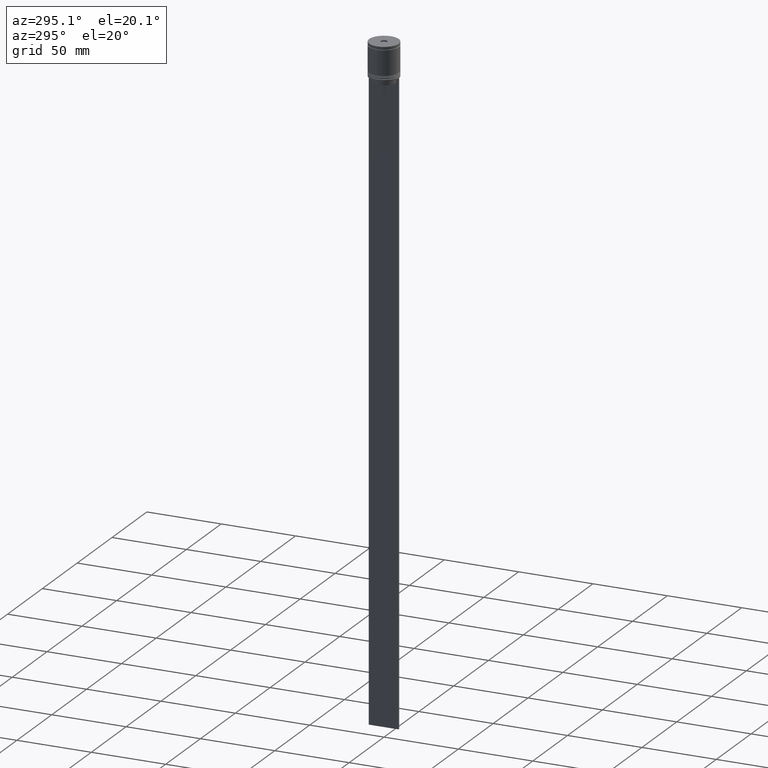
[diagram: clean part render]
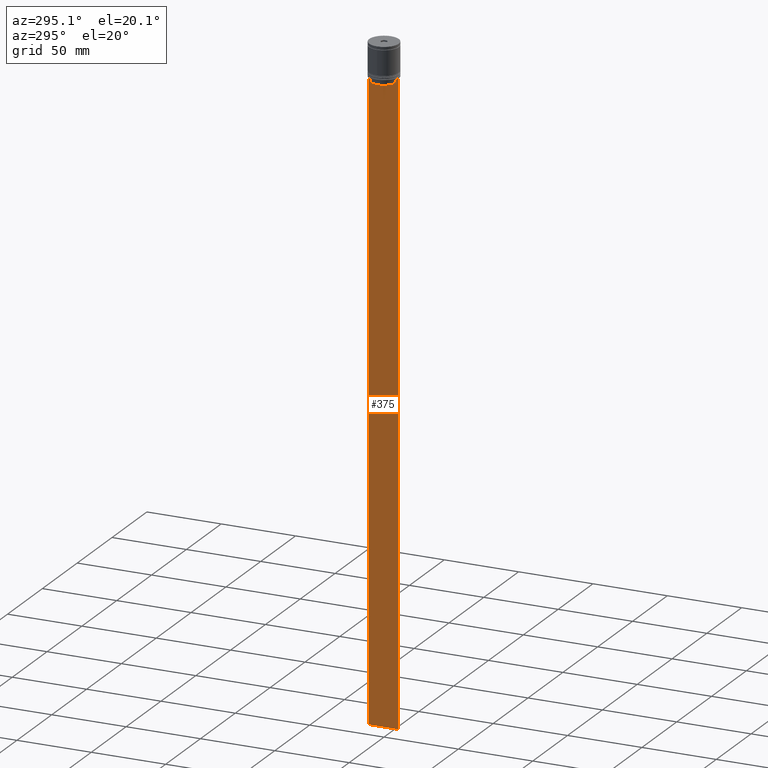
[diagram: same view with one face highlighted and labeled with its STEP entity id]
A machine part, auxiliary view. The second image highlights one B-rep face of the part: STEP entity #375.
In plain terms, the highlighted planar face has unit normal (-1, 0, 0).
Its self-contained STEP definition (entity closure, byte-faithful):
#8 = CARTESIAN_POINT ( 'NONE',  ( -0.5000000000000000000, -10.00000000000000178, -2.475015605499213844 ) ) ;
#22 = CARTESIAN_POINT ( 'NONE',  ( -0.5000000000000000000, -8.385105843100610912, -23.00000000000000000 ) ) ;
#42 = CARTESIAN_POINT ( 'NONE',  ( -0.5000000000000000000, 8.885943956609226646, -22.50000000000000000 ) ) ;
#50 = LINE ( 'NONE', #679, #506 ) ;
#89 = CARTESIAN_POINT ( 'NONE',  ( -0.5000000000000000000, -8.885943956609226646, -22.50000000000000000 ) ) ;
#110 = DIRECTION ( 'NONE',  ( 0.000000000000000000, -1.000000000000000000, 0.000000000000000000 ) ) ;
#147 = CARTESIAN_POINT ( 'NONE',  ( -0.5000000000000000000, -10.00000000000000178, -444.5000000000000000 ) ) ;
#175 = DIRECTION ( 'NONE',  ( 0.000000000000000000, 1.000000000000000000, 0.000000000000000000 ) ) ;
#243 = DIRECTION ( 'NONE',  ( 0.000000000000000000, 0.000000000000000000, -1.000000000000000000 ) ) ;
#281 = CARTESIAN_POINT ( 'NONE',  ( -0.5000000000000000000, 8.385105843100610912, -23.00000000000000000 ) ) ;
#341 = CARTESIAN_POINT ( 'NONE',  ( -0.5000000000000000000, -8.385105843100610912, 0.000000000000000000 ) ) ;
#348 = ORIENTED_EDGE ( 'NONE', *, *, #1237, .F. ) ;
#350 = CARTESIAN_POINT ( 'NONE',  ( -0.5000000000000000000, -10.00000000000000178, -22.50000000000000000 ) ) ;
#375 = ADVANCED_FACE ( 'NONE', ( #1553 ), #562, .T. ) ;
#388 = CARTESIAN_POINT ( 'NONE',  ( -0.5000000000000000000, -10.00000000000000178, -22.50000000000000000 ) ) ;
#396 = VECTOR ( 'NONE', #110, 1000.000000000000000 ) ;
#401 = CARTESIAN_POINT ( 'NONE',  ( -0.5000000000000000000, 9.999999999999998224, -2.475015605499213844 ) ) ;
#425 = DIRECTION ( 'NONE',  ( -1.000000000000000000, 0.000000000000000000, 0.000000000000000000 ) ) ;
#448 = CARTESIAN_POINT ( 'NONE',  ( -0.5000000000000000000, 8.885943956609226646, -22.50000000000000000 ) ) ;
#457 = CARTESIAN_POINT ( 'NONE',  ( -0.5000000000000000000, -8.385105843100610912, -25.50000000000000000 ) ) ;
#486 = CARTESIAN_POINT ( 'NONE',  ( -0.5000000000000000000, -8.385105843100610912, -23.00000000000000000 ) ) ;
#506 = VECTOR ( 'NONE', #685, 1000.000000000000000 ) ;
#551 = CARTESIAN_POINT ( 'NONE',  ( -0.5000000000000000000, 8.719005771582342135, -22.66667453442325098 ) ) ;
#562 = PLANE ( 'NONE',  #1647 ) ;
#580 = ORIENTED_EDGE ( 'NONE', *, *, #1717, .F. ) ;
#589 = VERTEX_POINT ( 'NONE', #1806 ) ;
#622 = VERTEX_POINT ( 'NONE', #1357 ) ;
#632 = CARTESIAN_POINT ( 'NONE',  ( -0.5000000000000000000, -9.887365675446622149, -22.50000000000000000 ) ) ;
#636 = VECTOR ( 'NONE', #175, 1000.000000000000000 ) ;
#670 = EDGE_CURVE ( 'NONE', #1448, #1517, #823, .T. ) ;
#679 = CARTESIAN_POINT ( 'NONE',  ( -0.5000000000000000000, -10.00000000000000178, -22.50000000000000000 ) ) ;
#685 = DIRECTION ( 'NONE',  ( 0.000000000000000000, -1.000000000000000000, 0.000000000000000000 ) ) ;
#688 = ORIENTED_EDGE ( 'NONE', *, *, #1743, .F. ) ;
#703 = ORIENTED_EDGE ( 'NONE', *, *, #1830, .F. ) ;
#728 = LINE ( 'NONE', #740, #396 ) ;
#733 = VERTEX_POINT ( 'NONE', #1319 ) ;
#740 = CARTESIAN_POINT ( 'NONE',  ( -0.5000000000000000000, -10.00000000000000178, -22.50000000000000000 ) ) ;
#767 = CARTESIAN_POINT ( 'NONE',  ( -0.5000000000000000000, 8.400000000000000355, -25.50000000000000000 ) ) ;
#788 = ORIENTED_EDGE ( 'NONE', *, *, #1959, .T. ) ;
#789 = CARTESIAN_POINT ( 'NONE',  ( -0.5000000000000000000, -8.719005764482783860, -22.66667454151159689 ) ) ;
#794 = ORIENTED_EDGE ( 'NONE', *, *, #1085, .F. ) ;
#804 = LINE ( 'NONE', #147, #636 ) ;
#823 = LINE ( 'NONE', #341, #1306 ) ;
#840 = LINE ( 'NONE', #388, #1684 ) ;
#882 = VERTEX_POINT ( 'NONE', #281 ) ;
#883 = CARTESIAN_POINT ( 'NONE',  ( -0.5000000000000000000, -10.00000000000000178, -22.50000000000000000 ) ) ;
#885 = LINE ( 'NONE', #1821, #1777 ) ;
#920 = VERTEX_POINT ( 'NONE', #1899 ) ;
#925 = EDGE_CURVE ( 'NONE', #1517, #589, #1100, .T. ) ;
#949 = ORIENTED_EDGE ( 'NONE', *, *, #1863, .F. ) ;
#996 = CARTESIAN_POINT ( 'NONE',  ( -0.5000000000000000000, -8.552060194457768105, -22.83334167772666845 ) ) ;
#1038 = B_SPLINE_CURVE_WITH_KNOTS ( 'NONE', 3,
 ( #42, #551, #1184, #1150 ),
 .UNSPECIFIED., .F., .F.,
 ( 4, 4 ),
 ( 0.01511546479386905242, 0.01582316445439076874 ),
 .UNSPECIFIED. ) ;
#1051 = DIRECTION ( 'NONE',  ( 0.000000000000000000, 0.000000000000000000, 1.000000000000000000 ) ) ;
#1084 = LINE ( 'NONE', #767, #1094 ) ;
#1085 = EDGE_CURVE ( 'NONE', #733, #1919, #728, .T. ) ;
#1094 = VECTOR ( 'NONE', #1695, 1000.000000000000000 ) ;
#1100 = B_SPLINE_CURVE_WITH_KNOTS ( 'NONE', 3,
 ( #22, #996, #789, #89 ),
 .UNSPECIFIED., .F., .F.,
 ( 4, 4 ),
 ( 0.03898465126933125385, 0.03969388910599652709 ),
 .UNSPECIFIED. ) ;
#1144 = ORIENTED_EDGE ( 'NONE', *, *, #670, .F. ) ;
#1150 = CARTESIAN_POINT ( 'NONE',  ( -0.5000000000000000000, 8.385105843100610912, -23.00000000000000000 ) ) ;
#1178 = VERTEX_POINT ( 'NONE', #883 ) ;
#1184 = CARTESIAN_POINT ( 'NONE',  ( -0.5000000000000000000, 8.552060201981374732, -22.83334167021640582 ) ) ;
#1229 = ORIENTED_EDGE ( 'NONE', *, *, #925, .F. ) ;
#1237 = EDGE_CURVE ( 'NONE', #882, #1718, #885, .T. ) ;
#1270 = ORIENTED_EDGE ( 'NONE', *, *, #1733, .F. ) ;
#1306 = VECTOR ( 'NONE', #1936, 1000.000000000000000 ) ;
#1319 = CARTESIAN_POINT ( 'NONE',  ( -0.5000000000000000000, 9.887365675446622149, -22.50000000000000000 ) ) ;
#1347 = EDGE_CURVE ( 'NONE', #1718, #1448, #1084, .T. ) ;
#1357 = CARTESIAN_POINT ( 'NONE',  ( -0.5000000000000000000, 9.999999999999998224, -444.5000000000000000 ) ) ;
#1364 = LINE ( 'NONE', #350, #1596 ) ;
#1424 = LINE ( 'NONE', #401, #1488 ) ;
#1448 = VERTEX_POINT ( 'NONE', #457 ) ;
#1455 = VECTOR ( 'NONE', #1928, 1000.000000000000000 ) ;
#1456 = LINE ( 'NONE', #8, #1455 ) ;
#1488 = VECTOR ( 'NONE', #243, 1000.000000000000000 ) ;
#1500 = DIRECTION ( 'NONE',  ( 0.000000000000000000, -1.000000000000000000, 0.000000000000000000 ) ) ;
#1517 = VERTEX_POINT ( 'NONE', #486 ) ;
#1553 = FACE_OUTER_BOUND ( 'NONE', #1954, .T. ) ;
#1596 = VECTOR ( 'NONE', #1794, 1000.000000000000000 ) ;
#1626 = CARTESIAN_POINT ( 'NONE',  ( -0.5000000000000000000, 9.999999999999994671, -22.50000000000000000 ) ) ;
#1647 = AXIS2_PLACEMENT_3D ( 'NONE', #2023, #425, #1051 ) ;
#1668 = VERTEX_POINT ( 'NONE', #632 ) ;
#1684 = VECTOR ( 'NONE', #1500, 1000.000000000000000 ) ;
#1695 = DIRECTION ( 'NONE',  ( 0.000000000000000000, -1.000000000000000000, 0.000000000000000000 ) ) ;
#1717 = EDGE_CURVE ( 'NONE', #1178, #920, #1456, .T. ) ;
#1718 = VERTEX_POINT ( 'NONE', #2000 ) ;
#1733 = EDGE_CURVE ( 'NONE', #1668, #1178, #1364, .T. ) ;
#1743 = EDGE_CURVE ( 'NONE', #2050, #733, #50, .T. ) ;
#1772 = ORIENTED_EDGE ( 'NONE', *, *, #2060, .F. ) ;
#1777 = VECTOR ( 'NONE', #1834, 1000.000000000000000 ) ;
#1794 = DIRECTION ( 'NONE',  ( 0.000000000000000000, -1.000000000000000000, 0.000000000000000000 ) ) ;
#1806 = CARTESIAN_POINT ( 'NONE',  ( -0.5000000000000000000, -8.885943956609226646, -22.50000000000000000 ) ) ;
#1821 = CARTESIAN_POINT ( 'NONE',  ( -0.5000000000000000000, 8.385105843100610912, 0.000000000000000000 ) ) ;
#1830 = EDGE_CURVE ( 'NONE', #1919, #882, #1038, .T. ) ;
#1834 = DIRECTION ( 'NONE',  ( 0.000000000000000000, 0.000000000000000000, -1.000000000000000000 ) ) ;
#1863 = EDGE_CURVE ( 'NONE', #589, #1668, #840, .T. ) ;
#1899 = CARTESIAN_POINT ( 'NONE',  ( -0.5000000000000000000, -10.00000000000000178, -444.5000000000000000 ) ) ;
#1919 = VERTEX_POINT ( 'NONE', #448 ) ;
#1922 = ORIENTED_EDGE ( 'NONE', *, *, #1347, .F. ) ;
#1928 = DIRECTION ( 'NONE',  ( 0.000000000000000000, 0.000000000000000000, -1.000000000000000000 ) ) ;
#1936 = DIRECTION ( 'NONE',  ( -0.000000000000000000, -0.000000000000000000, 1.000000000000000000 ) ) ;
#1954 = EDGE_LOOP ( 'NONE', ( #703, #794, #688, #788, #1772, #580, #1270, #949, #1229, #1144, #1922, #348 ) ) ;
#1959 = EDGE_CURVE ( 'NONE', #2050, #622, #1424, .T. ) ;
#2000 = CARTESIAN_POINT ( 'NONE',  ( -0.5000000000000000000, 8.385105843100610912, -25.50000000000000000 ) ) ;
#2023 = CARTESIAN_POINT ( 'NONE',  ( -0.5000000000000000000, -10.00000000000000178, -2.475015605499213844 ) ) ;
#2050 = VERTEX_POINT ( 'NONE', #1626 ) ;
#2060 = EDGE_CURVE ( 'NONE', #920, #622, #804, .T. ) ;